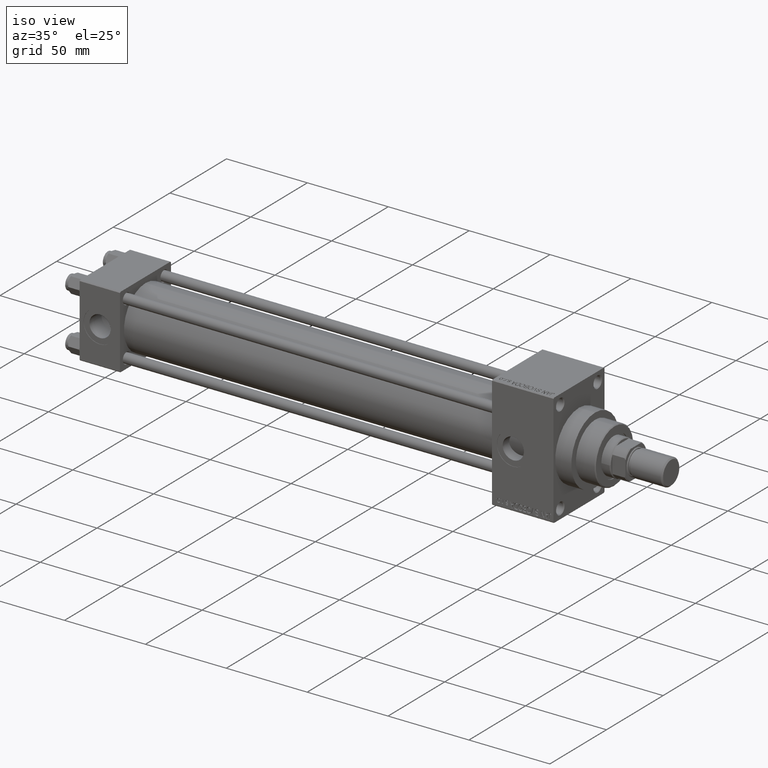
[diagram: clean part render]
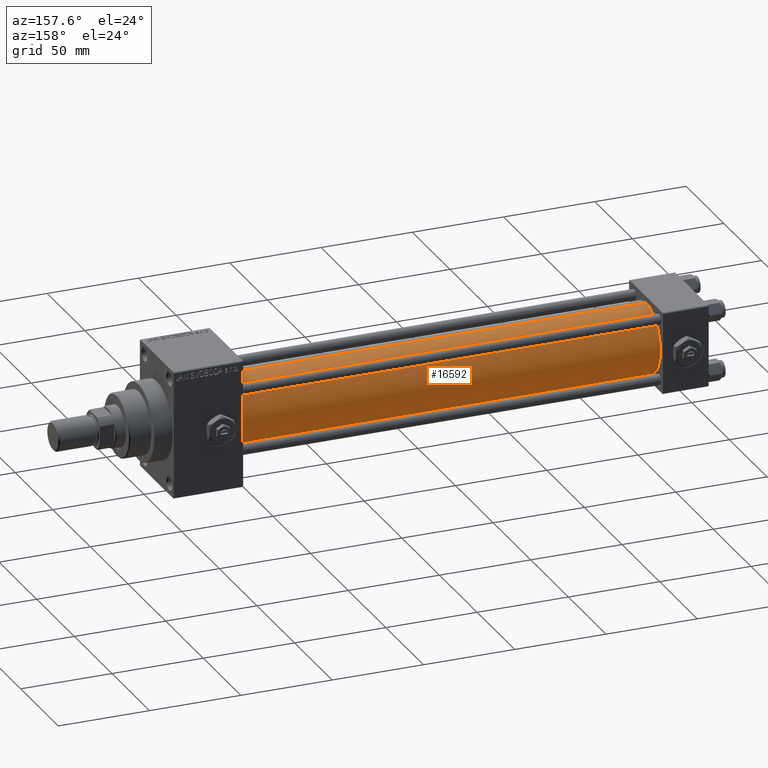
[diagram: tour spotlight — one face highlighted and labeled with its STEP entity id]
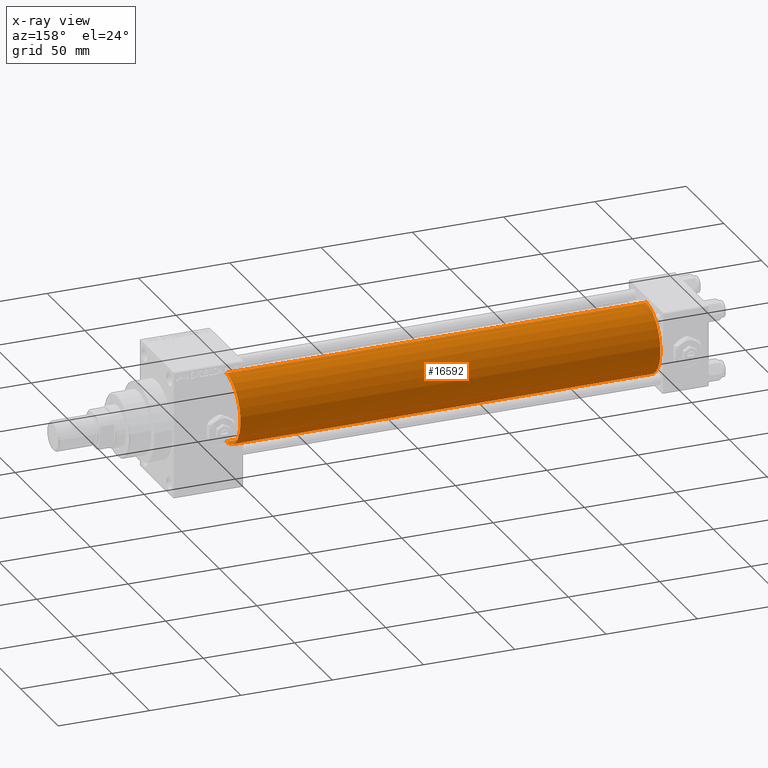
[diagram: x-ray of the same camera — body ghosted, this tour face saturated]
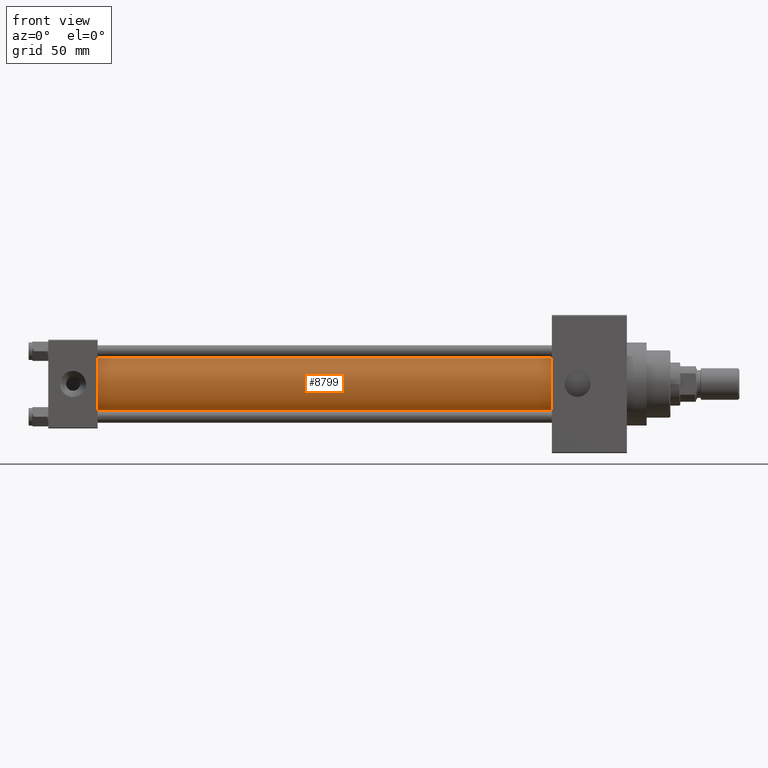
[diagram: tour spotlight — one face highlighted and labeled with its STEP entity id]
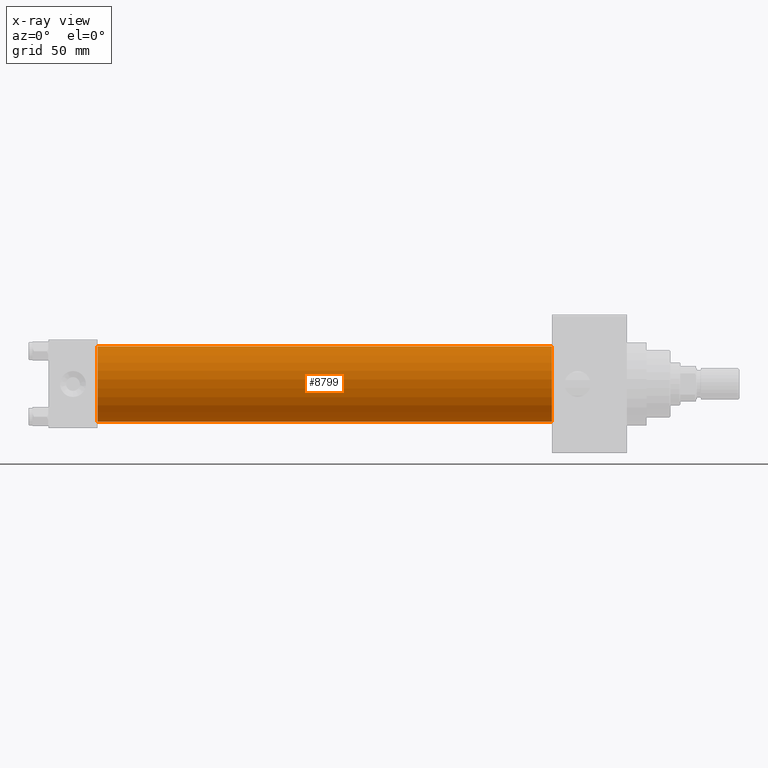
[diagram: x-ray of the same camera — body ghosted, this tour face saturated]
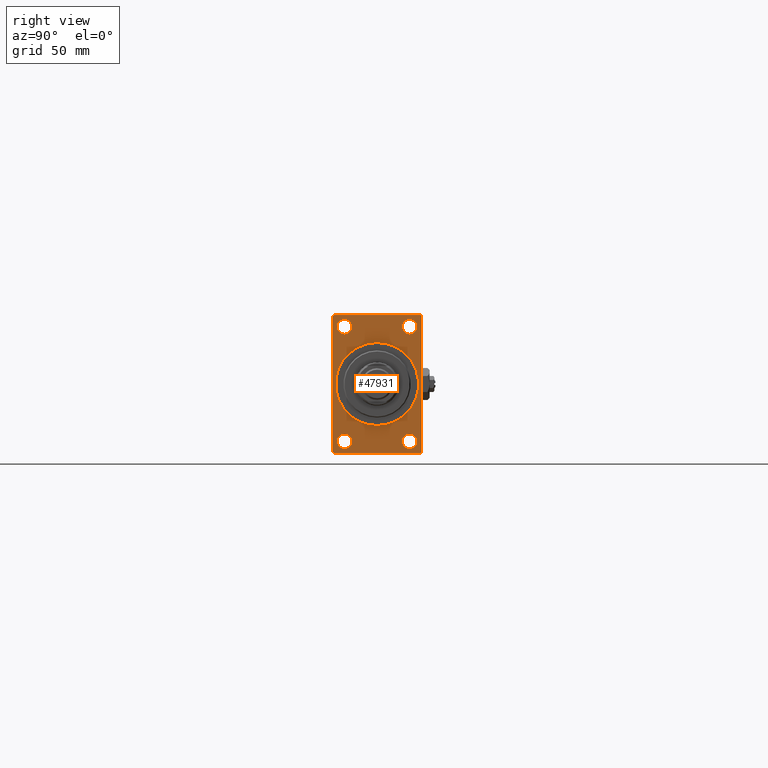
[diagram: tour spotlight — one face highlighted and labeled with its STEP entity id]
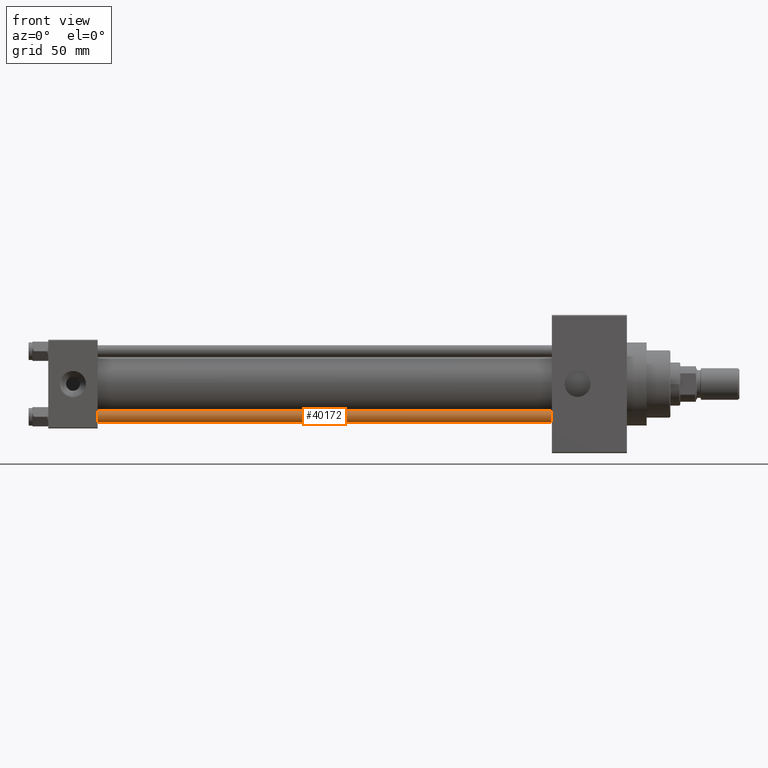
[diagram: tour spotlight — one face highlighted and labeled with its STEP entity id]
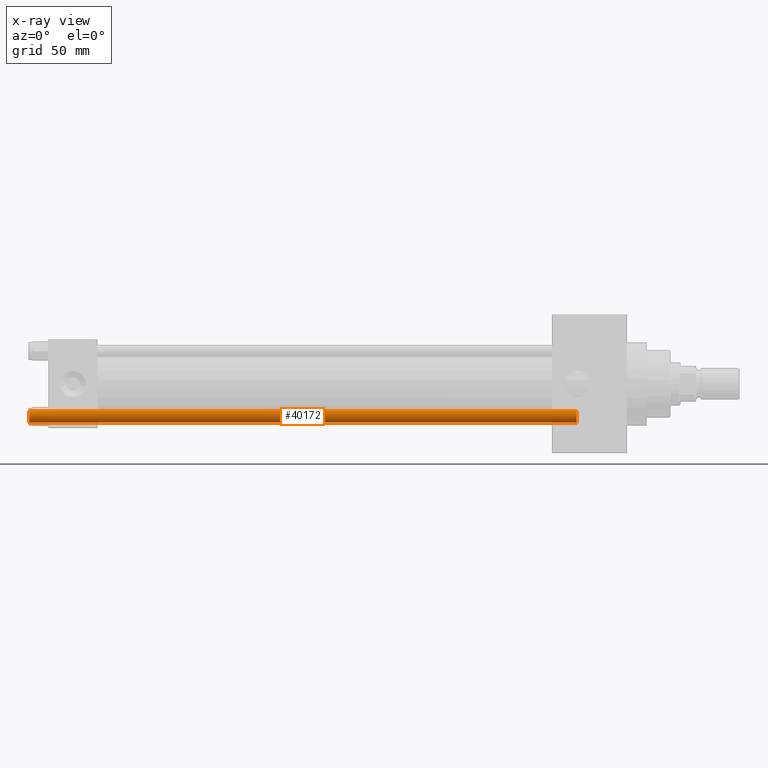
[diagram: x-ray of the same camera — body ghosted, this tour face saturated]
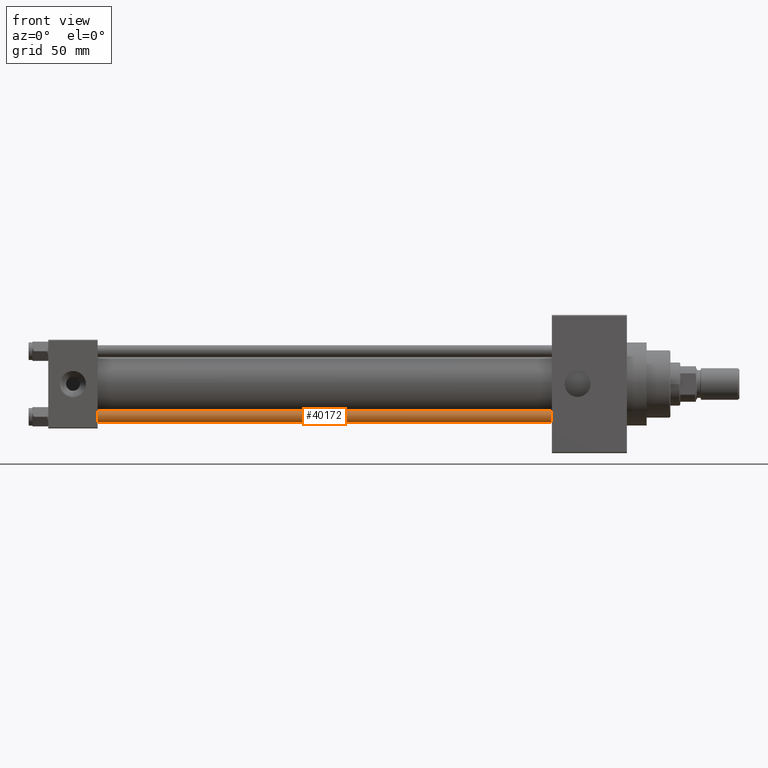
[diagram: tour spotlight — one face highlighted and labeled with its STEP entity id]
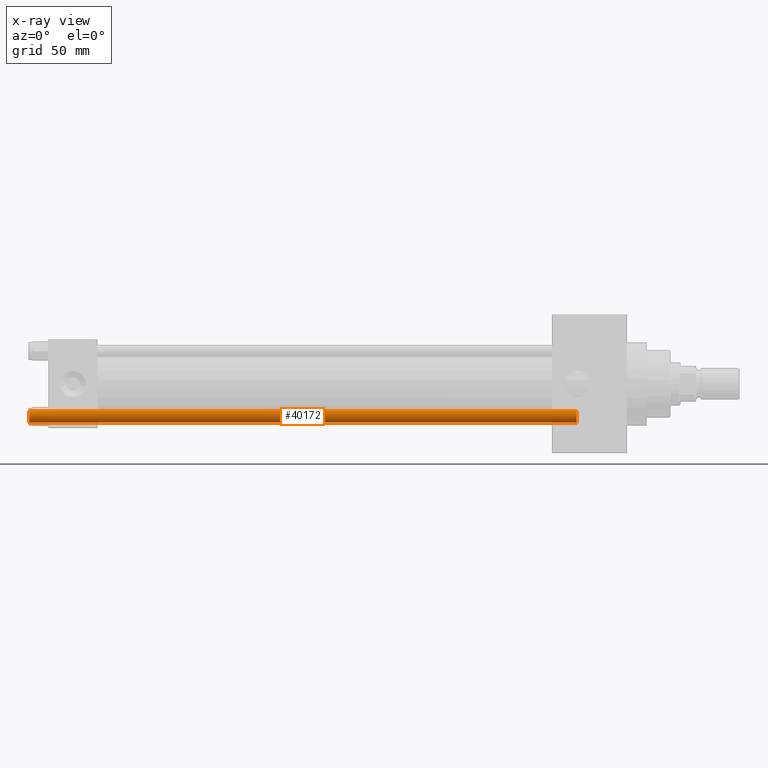
[diagram: x-ray of the same camera — body ghosted, this tour face saturated]
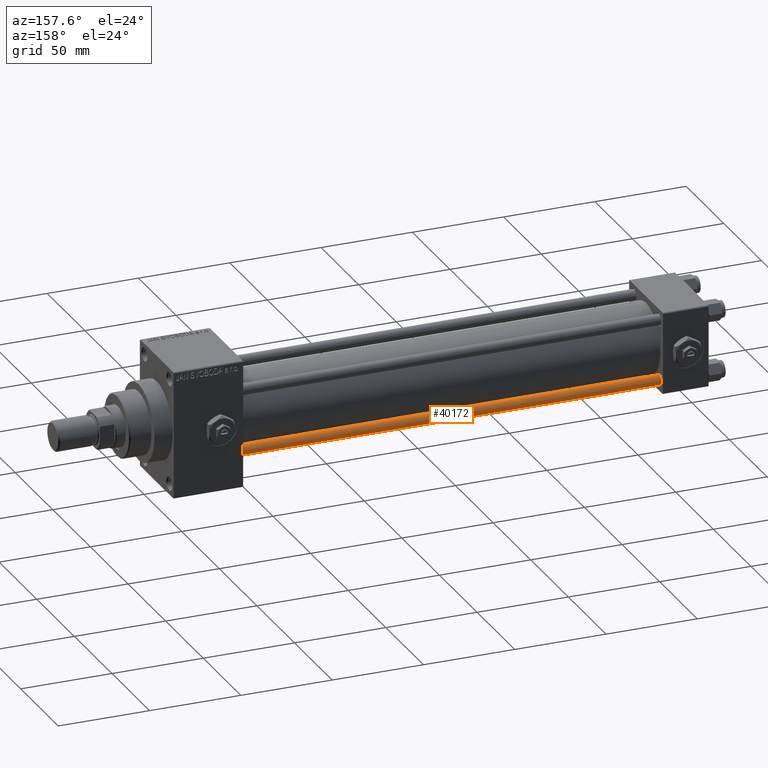
[diagram: tour spotlight — one face highlighted and labeled with its STEP entity id]
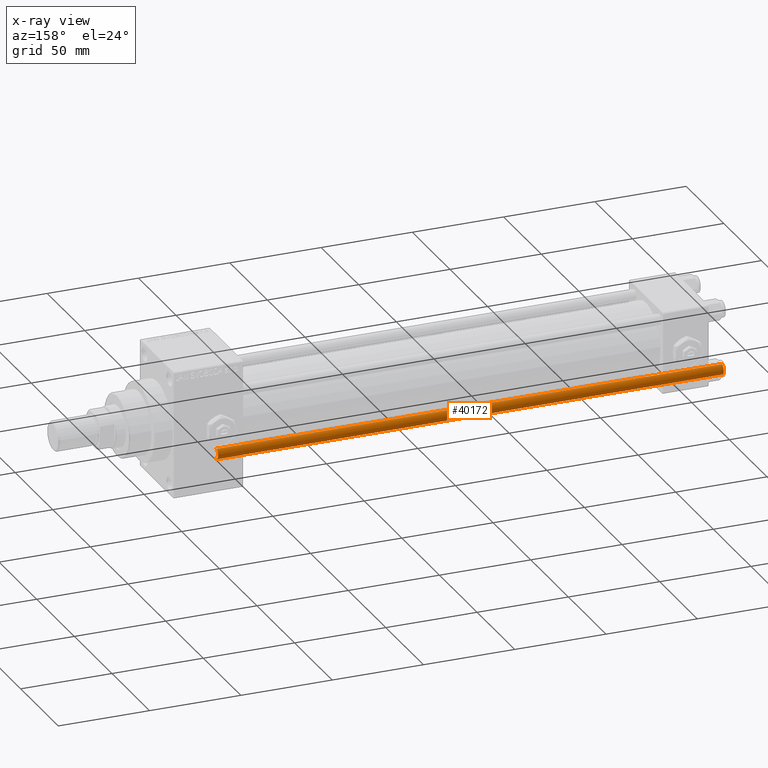
[diagram: x-ray of the same camera — body ghosted, this tour face saturated]
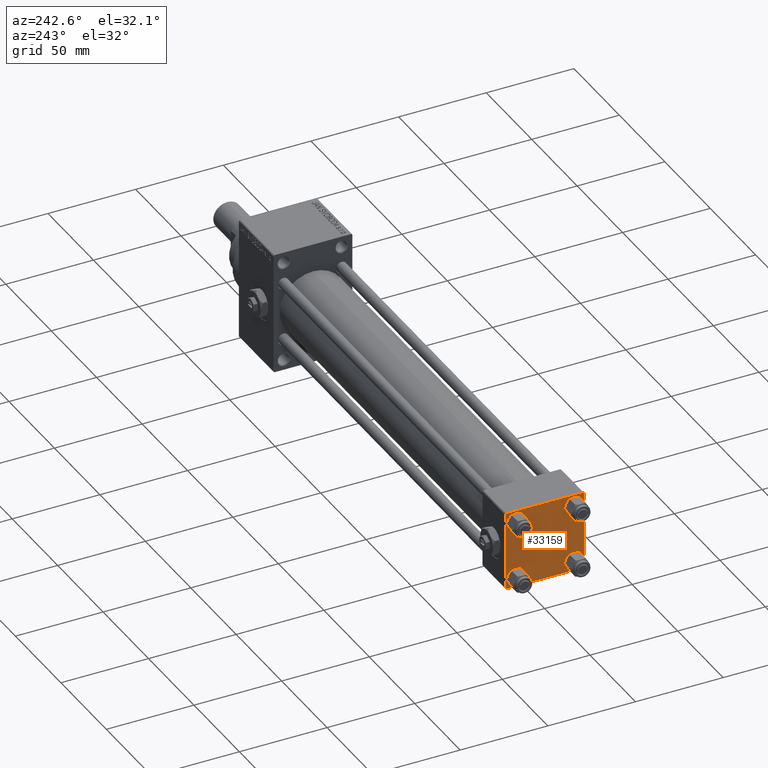
[diagram: tour spotlight — one face highlighted and labeled with its STEP entity id]
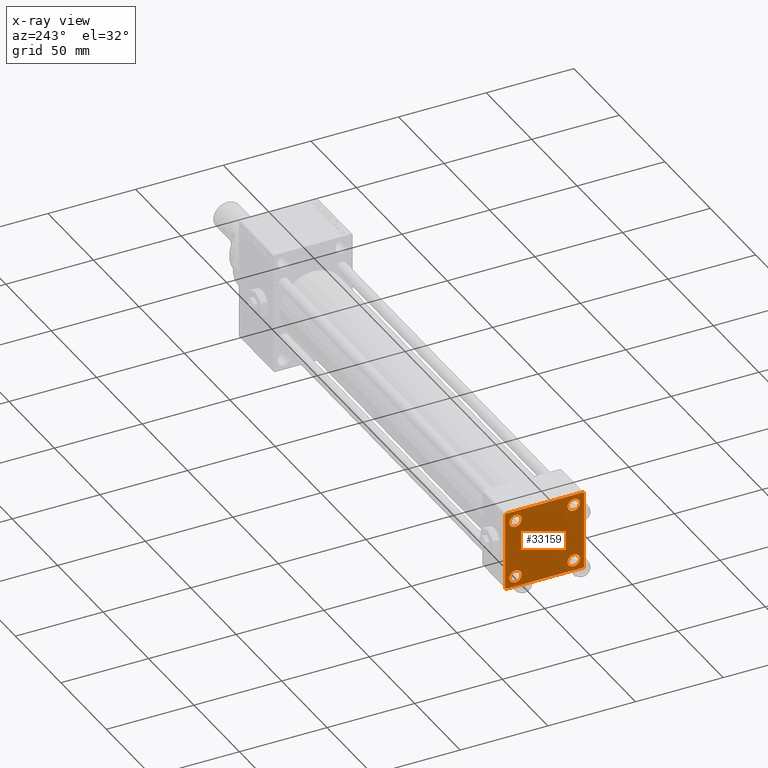
[diagram: x-ray of the same camera — body ghosted, this tour face saturated]
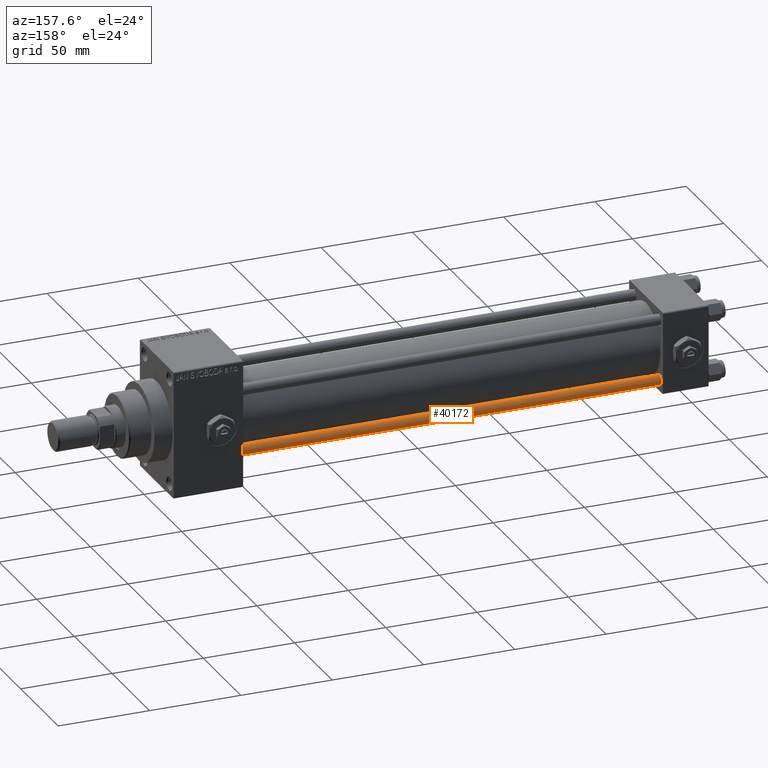
[diagram: tour spotlight — one face highlighted and labeled with its STEP entity id]
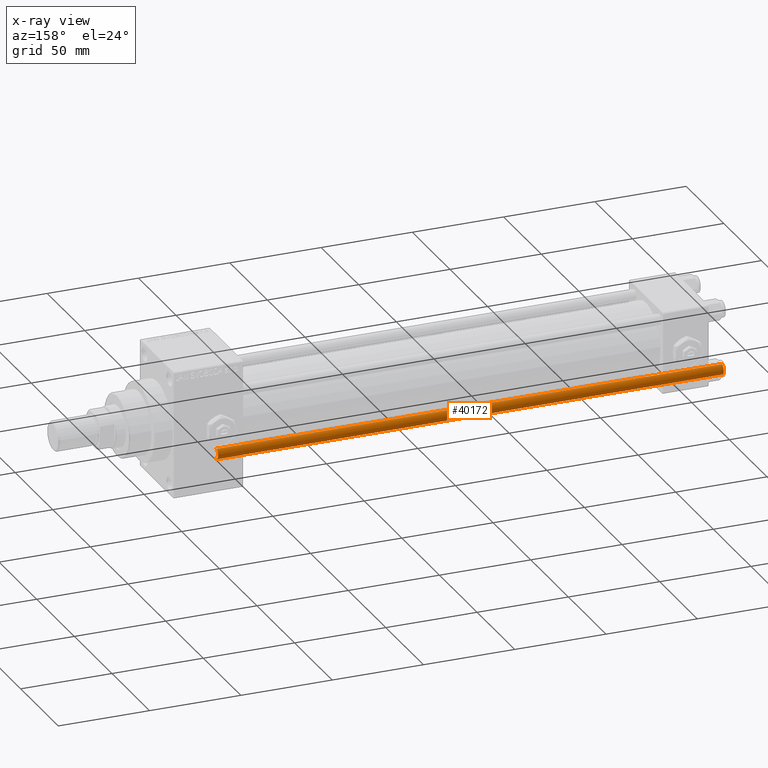
[diagram: x-ray of the same camera — body ghosted, this tour face saturated]
A machine part: a face-by-face anatomy tour. The part has 1216 B-rep faces; the first image is the clean iso view, then the 8 largest visible faces are spotlighted one at a time (largest first), each with its STEP entity span.

Face 1 — auxiliary view, entity #16592. An x-ray twin of the same camera follows (body ghosted, this face saturated) — the face is partly hidden behind the body. In plain terms, the highlighted cylindrical surface (partial cylindrical patch) has radius 19 mm, axis along (-1, -0, -0).
Definition (entity closure, byte-faithful):
#81 = DIRECTION ( 'NONE',  ( 1.000000000000000000, -0.000000000000000000, 0.000000000000000000 ) ) ;
#90 = CARTESIAN_POINT ( 'NONE',  ( 255.0000000000000000, -2.602085213965210642E-15, 19.00000000000000000 ) ) ;
#243 = CYLINDRICAL_SURFACE ( 'NONE', #13192, 19.00000000000000000 ) ;
#1212 = LINE ( 'NONE', #27505, #6956 ) ;
#2462 = CARTESIAN_POINT ( 'NONE',  ( 255.0000000000000000, -2.602085213965210642E-15, 0.000000000000000000 ) ) ;
#6956 = VECTOR ( 'NONE', #20258, 1000.000000000000000 ) ;
#8927 = VERTEX_POINT ( 'NONE', #44799 ) ;
#10486 = DIRECTION ( 'NONE',  ( 0.000000000000000000, 0.000000000000000000, -1.000000000000000000 ) ) ;
#11511 = FACE_OUTER_BOUND ( 'NONE', #39382, .T. ) ;
#12346 = EDGE_CURVE ( 'NONE', #40312, #33303, #45321, .T. ) ;
#13192 = AXIS2_PLACEMENT_3D ( 'NONE', #22327, #26071, #33582 ) ;
#14091 = VERTEX_POINT ( 'NONE', #90 ) ;
#15628 = EDGE_CURVE ( 'NONE', #40312, #14091, #17148, .T. ) ;
#16275 = AXIS2_PLACEMENT_3D ( 'NONE', #45205, #81, #45928 ) ;
#16592 = ADVANCED_FACE ( 'NONE', ( #11511 ), #243, .T. ) ;
#17148 = CIRCLE ( 'NONE', #26724, 19.00000000000000000 ) ;
#17774 = DIRECTION ( 'NONE',  ( 1.000000000000000000, 0.000000000000000000, 0.000000000000000000 ) ) ;
#18765 = DIRECTION ( 'NONE',  ( -1.000000000000000000, -0.000000000000000000, -0.000000000000000000 ) ) ;
#20258 = DIRECTION ( 'NONE',  ( -1.000000000000000000, -0.000000000000000000, -0.000000000000000000 ) ) ;
#21470 = EDGE_CURVE ( 'NONE', #14091, #8927, #1212, .T. ) ;
#22327 = CARTESIAN_POINT ( 'NONE',  ( 255.0000000000000000, -2.602085213965210642E-15, 0.000000000000000000 ) ) ;
#23149 = ORIENTED_EDGE ( 'NONE', *, *, #44138, .T. ) ;
#24156 = ORIENTED_EDGE ( 'NONE', *, *, #12346, .T. ) ;
#26071 = DIRECTION ( 'NONE',  ( -1.000000000000000000, -0.000000000000000000, -0.000000000000000000 ) ) ;
#26724 = AXIS2_PLACEMENT_3D ( 'NONE', #2462, #17774, #10486 ) ;
#27505 = CARTESIAN_POINT ( 'NONE',  ( 255.0000000000000000, -2.602085213965210642E-15, 19.00000000000000000 ) ) ;
#31568 = ORIENTED_EDGE ( 'NONE', *, *, #15628, .F. ) ;
#33238 = ORIENTED_EDGE ( 'NONE', *, *, #21470, .F. ) ;
#33303 = VERTEX_POINT ( 'NONE', #46899 ) ;
#33582 = DIRECTION ( 'NONE',  ( 0.000000000000000000, 0.000000000000000000, 1.000000000000000000 ) ) ;
#39382 = EDGE_LOOP ( 'NONE', ( #31568, #24156, #23149, #33238 ) ) ;
#40312 = VERTEX_POINT ( 'NONE', #41793 ) ;
#41072 = CARTESIAN_POINT ( 'NONE',  ( 255.0000000000000000, -2.752562955852396712E-16, -19.00000000000000000 ) ) ;
#41793 = CARTESIAN_POINT ( 'NONE',  ( 255.0000000000000000, -2.752562955852396712E-16, -19.00000000000000000 ) ) ;
#41875 = CIRCLE ( 'NONE', #16275, 19.00000000000000000 ) ;
#44138 = EDGE_CURVE ( 'NONE', #33303, #8927, #41875, .T. ) ;
#44799 = CARTESIAN_POINT ( 'NONE',  ( 24.99999999999999289, -2.602085213965210642E-15, 19.00000000000000000 ) ) ;
#45205 = CARTESIAN_POINT ( 'NONE',  ( 24.99999999999999289, -2.602085213965210642E-15, 0.000000000000000000 ) ) ;
#45321 = LINE ( 'NONE', #41072, #49177 ) ;
#45928 = DIRECTION ( 'NONE',  ( 0.000000000000000000, 0.000000000000000000, 1.000000000000000000 ) ) ;
#46899 = CARTESIAN_POINT ( 'NONE',  ( 24.99999999999999289, -2.752562955852396712E-16, -19.00000000000000000 ) ) ;
#49177 = VECTOR ( 'NONE', #18765, 1000.000000000000000 ) ;

Face 2 — front view, entity #8799. An x-ray twin of the same camera follows (body ghosted, this face saturated) — the face is partly hidden behind the body. In plain terms, the highlighted cylindrical surface (partial cylindrical patch) has radius 19 mm, axis along (-1, -0, -0).
Definition (entity closure, byte-faithful):
#90 = CARTESIAN_POINT ( 'NONE',  ( 255.0000000000000000, -2.602085213965210642E-15, 19.00000000000000000 ) ) ;
#1212 = LINE ( 'NONE', #27505, #6956 ) ;
#3483 = ORIENTED_EDGE ( 'NONE', *, *, #12346, .F. ) ;
#4723 = DIRECTION ( 'NONE',  ( 0.000000000000000000, 0.000000000000000000, 1.000000000000000000 ) ) ;
#5151 = ORIENTED_EDGE ( 'NONE', *, *, #7077, .F. ) ;
#5472 = FACE_OUTER_BOUND ( 'NONE', #6080, .T. ) ;
#5625 = CIRCLE ( 'NONE', #23220, 19.00000000000000000 ) ;
#6080 = EDGE_LOOP ( 'NONE', ( #3483, #5151, #10765, #28119 ) ) ;
#6956 = VECTOR ( 'NONE', #20258, 1000.000000000000000 ) ;
#7077 = EDGE_CURVE ( 'NONE', #14091, #40312, #13950, .T. ) ;
#8799 = ADVANCED_FACE ( 'NONE', ( #5472 ), #20267, .T. ) ;
#8927 = VERTEX_POINT ( 'NONE', #44799 ) ;
#10765 = ORIENTED_EDGE ( 'NONE', *, *, #21470, .T. ) ;
#12346 = EDGE_CURVE ( 'NONE', #40312, #33303, #45321, .T. ) ;
#13140 = DIRECTION ( 'NONE',  ( 0.000000000000000000, 0.000000000000000000, 1.000000000000000000 ) ) ;
#13950 = CIRCLE ( 'NONE', #38743, 19.00000000000000000 ) ;
#14091 = VERTEX_POINT ( 'NONE', #90 ) ;
#18765 = DIRECTION ( 'NONE',  ( -1.000000000000000000, -0.000000000000000000, -0.000000000000000000 ) ) ;
#20258 = DIRECTION ( 'NONE',  ( -1.000000000000000000, -0.000000000000000000, -0.000000000000000000 ) ) ;
#20267 = CYLINDRICAL_SURFACE ( 'NONE', #44429, 19.00000000000000000 ) ;
#20755 = DIRECTION ( 'NONE',  ( 1.000000000000000000, 0.000000000000000000, 0.000000000000000000 ) ) ;
#21470 = EDGE_CURVE ( 'NONE', #14091, #8927, #1212, .T. ) ;
#23220 = AXIS2_PLACEMENT_3D ( 'NONE', #35933, #47206, #13140 ) ;
#24760 = CARTESIAN_POINT ( 'NONE',  ( 255.0000000000000000, -2.602085213965210642E-15, 0.000000000000000000 ) ) ;
#27505 = CARTESIAN_POINT ( 'NONE',  ( 255.0000000000000000, -2.602085213965210642E-15, 19.00000000000000000 ) ) ;
#28001 = DIRECTION ( 'NONE',  ( 0.000000000000000000, 0.000000000000000000, -1.000000000000000000 ) ) ;
#28119 = ORIENTED_EDGE ( 'NONE', *, *, #32907, .T. ) ;
#31765 = CARTESIAN_POINT ( 'NONE',  ( 255.0000000000000000, -2.602085213965210642E-15, 0.000000000000000000 ) ) ;
#32527 = DIRECTION ( 'NONE',  ( -1.000000000000000000, -0.000000000000000000, -0.000000000000000000 ) ) ;
#32907 = EDGE_CURVE ( 'NONE', #8927, #33303, #5625, .T. ) ;
#33303 = VERTEX_POINT ( 'NONE', #46899 ) ;
#35933 = CARTESIAN_POINT ( 'NONE',  ( 24.99999999999999289, -2.602085213965210642E-15, 0.000000000000000000 ) ) ;
#38743 = AXIS2_PLACEMENT_3D ( 'NONE', #31765, #20755, #28001 ) ;
#40312 = VERTEX_POINT ( 'NONE', #41793 ) ;
#41072 = CARTESIAN_POINT ( 'NONE',  ( 255.0000000000000000, -2.752562955852396712E-16, -19.00000000000000000 ) ) ;
#41793 = CARTESIAN_POINT ( 'NONE',  ( 255.0000000000000000, -2.752562955852396712E-16, -19.00000000000000000 ) ) ;
#44429 = AXIS2_PLACEMENT_3D ( 'NONE', #24760, #32527, #4723 ) ;
#44799 = CARTESIAN_POINT ( 'NONE',  ( 24.99999999999999289, -2.602085213965210642E-15, 19.00000000000000000 ) ) ;
#45321 = LINE ( 'NONE', #41072, #49177 ) ;
#46899 = CARTESIAN_POINT ( 'NONE',  ( 24.99999999999999289, -2.752562955852396712E-16, -19.00000000000000000 ) ) ;
#47206 = DIRECTION ( 'NONE',  ( 1.000000000000000000, -0.000000000000000000, 0.000000000000000000 ) ) ;
#49177 = VECTOR ( 'NONE', #18765, 1000.000000000000000 ) ;

Face 3 — right view, entity #47931. In plain terms, the highlighted planar face has unit normal (-1, 0, 0).
Definition (entity closure, byte-faithful):
#96 = VECTOR ( 'NONE', #36192, 1000.000000000000000 ) ;
#139 = DIRECTION ( 'NONE',  ( 0.000000000000000000, -1.000000000000000000, 0.000000000000000000 ) ) ;
#409 = CIRCLE ( 'NONE', #30811, 3.750000000000055511 ) ;
#772 = VERTEX_POINT ( 'NONE', #27782 ) ;
#799 = DIRECTION ( 'NONE',  ( 0.000000000000000000, -1.000000000000000000, 0.000000000000000000 ) ) ;
#1012 = CARTESIAN_POINT ( 'NONE',  ( 293.0000000000000000, -16.50000000000000000, 25.24999999999995381 ) ) ;
#1125 = AXIS2_PLACEMENT_3D ( 'NONE', #28204, #39980, #13429 ) ;
#1305 = EDGE_CURVE ( 'NONE', #30660, #34110, #2486, .T. ) ;
#2002 = DIRECTION ( 'NONE',  ( -0.000000000000000000, 0.7071067811865672237, 0.7071067811865279218 ) ) ;
#2426 = CARTESIAN_POINT ( 'NONE',  ( 293.0000000000000000, 22.49999999999999645, 34.50000000000000000 ) ) ;
#2486 = LINE ( 'NONE', #40583, #30552 ) ;
#2597 = AXIS2_PLACEMENT_3D ( 'NONE', #18182, #13659, #36942 ) ;
#2845 = EDGE_CURVE ( 'NONE', #20698, #772, #47380, .T. ) ;
#3093 = AXIS2_PLACEMENT_3D ( 'NONE', #44635, #7014, #41108 ) ;
#3503 = EDGE_CURVE ( 'NONE', #44956, #45245, #41998, .T. ) ;
#4342 = CARTESIAN_POINT ( 'NONE',  ( 293.0000000000000000, -22.50000000000000355, -34.50000000000000000 ) ) ;
#4517 = EDGE_CURVE ( 'NONE', #29907, #4575, #37073, .T. ) ;
#4575 = VERTEX_POINT ( 'NONE', #41630 ) ;
#4599 = ORIENTED_EDGE ( 'NONE', *, *, #43887, .T. ) ;
#4656 = EDGE_LOOP ( 'NONE', ( #11989, #22182, #35012, #38792, #9997, #43025, #4599, #25681 ) ) ;
#5144 = VERTEX_POINT ( 'NONE', #12683 ) ;
#6068 = EDGE_CURVE ( 'NONE', #25559, #5144, #12276, .T. ) ;
#7014 = DIRECTION ( 'NONE',  ( -1.000000000000000000, -0.000000000000000000, -0.000000000000000000 ) ) ;
#7545 = DIRECTION ( 'NONE',  ( -1.000000000000000000, -0.000000000000000000, -0.000000000000000000 ) ) ;
#7666 = CARTESIAN_POINT ( 'NONE',  ( 293.0000000000000000, -22.50000000000000355, 35.00000000000000000 ) ) ;
#7695 = CARTESIAN_POINT ( 'NONE',  ( 293.0000000000000000, 16.50000000000000000, -32.75000000000005684 ) ) ;
#8384 = DIRECTION ( 'NONE',  ( 0.000000000000000000, -0.7071067811865279218, 0.7071067811865671127 ) ) ;
#8649 = EDGE_CURVE ( 'NONE', #4575, #29907, #409, .T. ) ;
#8813 = CARTESIAN_POINT ( 'NONE',  ( 293.0000000000000000, -21.99999999999996092, 35.00000000000000000 ) ) ;
#9257 = EDGE_LOOP ( 'NONE', ( #38964, #23137 ) ) ;
#9325 = VERTEX_POINT ( 'NONE', #8813 ) ;
#9664 = DIRECTION ( 'NONE',  ( 0.000000000000000000, 0.000000000000000000, 1.000000000000000000 ) ) ;
#9796 = EDGE_LOOP ( 'NONE', ( #29252, #18503 ) ) ;
#9858 = EDGE_CURVE ( 'NONE', #28689, #36130, #31633, .T. ) ;
#9997 = ORIENTED_EDGE ( 'NONE', *, *, #40499, .F. ) ;
#10270 = CARTESIAN_POINT ( 'NONE',  ( 293.0000000000000000, 0.000000000000000000, 21.00000000000000000 ) ) ;
#10445 = LINE ( 'NONE', #25717, #20847 ) ;
#11505 = FACE_BOUND ( 'NONE', #30114, .T. ) ;
#11724 = CARTESIAN_POINT ( 'NONE',  ( 293.0000000000000000, 22.00000000000002132, 35.00000000000000000 ) ) ;
#11876 = CIRCLE ( 'NONE', #3093, 3.750000000000055511 ) ;
#11989 = ORIENTED_EDGE ( 'NONE', *, *, #3503, .T. ) ;
#12276 = CIRCLE ( 'NONE', #40294, 3.750000000000058620 ) ;
#12459 = ORIENTED_EDGE ( 'NONE', *, *, #39296, .T. ) ;
#12683 = CARTESIAN_POINT ( 'NONE',  ( 293.0000000000000000, 16.50000000000000000, 25.24999999999994671 ) ) ;
#13429 = DIRECTION ( 'NONE',  ( 0.000000000000000000, 0.000000000000000000, -1.000000000000000000 ) ) ;
#13659 = DIRECTION ( 'NONE',  ( -1.000000000000000000, -0.000000000000000000, -0.000000000000000000 ) ) ;
#14521 = CARTESIAN_POINT ( 'NONE',  ( 293.0000000000000000, 2.571758278209441661E-15, -21.00000000000000000 ) ) ;
#14792 = PLANE ( 'NONE',  #45836 ) ;
#14994 = EDGE_CURVE ( 'NONE', #43521, #44342, #18733, .T. ) ;
#15036 = CARTESIAN_POINT ( 'NONE',  ( 293.0000000000000000, 0.000000000000000000, 0.000000000000000000 ) ) ;
#15268 = CIRCLE ( 'NONE', #40096, 3.750000000000055511 ) ;
#15413 = ORIENTED_EDGE ( 'NONE', *, *, #14994, .F. ) ;
#16579 = CARTESIAN_POINT ( 'NONE',  ( 293.0000000000000000, 21.99999999999996803, -35.00000000000000000 ) ) ;
#16648 = EDGE_CURVE ( 'NONE', #44342, #43521, #35568, .T. ) ;
#17187 = ORIENTED_EDGE ( 'NONE', *, *, #4517, .T. ) ;
#17373 = CARTESIAN_POINT ( 'NONE',  ( 293.0000000000000000, -16.50000000000000000, -25.24999999999993605 ) ) ;
#18182 = CARTESIAN_POINT ( 'NONE',  ( 293.0000000000000000, -16.50000000000000000, -28.99999999999999289 ) ) ;
#18317 = DIRECTION ( 'NONE',  ( 0.000000000000000000, 0.000000000000000000, 1.000000000000000000 ) ) ;
#18503 = ORIENTED_EDGE ( 'NONE', *, *, #6068, .T. ) ;
#18733 = CIRCLE ( 'NONE', #1125, 21.00000000000000000 ) ;
#19053 = DIRECTION ( 'NONE',  ( 0.000000000000000000, 0.000000000000000000, -1.000000000000000000 ) ) ;
#19143 = DIRECTION ( 'NONE',  ( 0.000000000000000000, 0.000000000000000000, 1.000000000000000000 ) ) ;
#20143 = CARTESIAN_POINT ( 'NONE',  ( 293.0000000000000000, 16.50000000000000000, 32.75000000000006395 ) ) ;
#20282 = DIRECTION ( 'NONE',  ( -1.000000000000000000, 0.000000000000000000, -0.000000000000000000 ) ) ;
#20698 = VERTEX_POINT ( 'NONE', #17373 ) ;
#20847 = VECTOR ( 'NONE', #21989, 1000.000000000000000 ) ;
#21143 = DIRECTION ( 'NONE',  ( -1.000000000000000000, -0.000000000000000000, -0.000000000000000000 ) ) ;
#21586 = CARTESIAN_POINT ( 'NONE',  ( 293.0000000000000000, 16.50000000000000000, 29.00000000000000355 ) ) ;
#21637 = CARTESIAN_POINT ( 'NONE',  ( 293.0000000000000000, -16.50000000000000000, 29.00000000000000711 ) ) ;
#21989 = DIRECTION ( 'NONE',  ( -0.000000000000000000, -0.7071067811865672237, -0.7071067811865279218 ) ) ;
#22083 = AXIS2_PLACEMENT_3D ( 'NONE', #30169, #45446, #19143 ) ;
#22182 = ORIENTED_EDGE ( 'NONE', *, *, #27786, .T. ) ;
#22381 = CIRCLE ( 'NONE', #24765, 3.750000000000058620 ) ;
#22970 = DIRECTION ( 'NONE',  ( 0.000000000000000000, 0.000000000000000000, -1.000000000000000000 ) ) ;
#23137 = ORIENTED_EDGE ( 'NONE', *, *, #26124, .T. ) ;
#23858 = EDGE_LOOP ( 'NONE', ( #15413, #37521 ) ) ;
#23939 = CARTESIAN_POINT ( 'NONE',  ( 293.0000000000000000, -22.50000000000000355, 34.50000000000000000 ) ) ;
#24202 = DIRECTION ( 'NONE',  ( -1.000000000000000000, -0.000000000000000000, -0.000000000000000000 ) ) ;
#24765 = AXIS2_PLACEMENT_3D ( 'NONE', #21586, #40855, #18317 ) ;
#25014 = LINE ( 'NONE', #29293, #49438 ) ;
#25016 = VECTOR ( 'NONE', #22970, 1000.000000000000000 ) ;
#25559 = VERTEX_POINT ( 'NONE', #20143 ) ;
#25668 = LINE ( 'NONE', #44484, #96 ) ;
#25681 = ORIENTED_EDGE ( 'NONE', *, *, #33641, .T. ) ;
#25717 = CARTESIAN_POINT ( 'NONE',  ( 293.0000000000000000, -22.50000000000000355, 34.50000000000000000 ) ) ;
#25842 = DIRECTION ( 'NONE',  ( 0.000000000000000000, 0.000000000000000000, 1.000000000000000000 ) ) ;
#26065 = FACE_BOUND ( 'NONE', #33125, .T. ) ;
#26124 = EDGE_CURVE ( 'NONE', #36130, #28689, #11876, .T. ) ;
#26587 = CARTESIAN_POINT ( 'NONE',  ( 293.0000000000000000, -16.50000000000000000, 29.00000000000000711 ) ) ;
#26615 = CARTESIAN_POINT ( 'NONE',  ( 293.0000000000000000, -22.00000000000001776, -35.00000000000000000 ) ) ;
#26791 = FACE_OUTER_BOUND ( 'NONE', #4656, .T. ) ;
#27782 = CARTESIAN_POINT ( 'NONE',  ( 293.0000000000000000, -16.50000000000000000, -32.75000000000005684 ) ) ;
#27786 = EDGE_CURVE ( 'NONE', #45245, #38955, #25014, .T. ) ;
#27855 = CARTESIAN_POINT ( 'NONE',  ( 293.0000000000000000, 22.49999999999999645, -35.00000000000000000 ) ) ;
#28204 = CARTESIAN_POINT ( 'NONE',  ( 293.0000000000000000, 0.000000000000000000, 0.000000000000000000 ) ) ;
#28689 = VERTEX_POINT ( 'NONE', #7695 ) ;
#29069 = AXIS2_PLACEMENT_3D ( 'NONE', #26587, #7545, #45624 ) ;
#29252 = ORIENTED_EDGE ( 'NONE', *, *, #30748, .T. ) ;
#29293 = CARTESIAN_POINT ( 'NONE',  ( 293.0000000000000000, -22.00000000000002842, -35.00000000000000000 ) ) ;
#29907 = VERTEX_POINT ( 'NONE', #1012 ) ;
#29972 = CARTESIAN_POINT ( 'NONE',  ( 293.0000000000000000, 22.49999999999999645, 35.00000000000000000 ) ) ;
#30114 = EDGE_LOOP ( 'NONE', ( #12459, #36271 ) ) ;
#30169 = CARTESIAN_POINT ( 'NONE',  ( 293.0000000000000000, 16.50000000000000000, -28.99999999999999289 ) ) ;
#30552 = VECTOR ( 'NONE', #2002, 1000.000000000000000 ) ;
#30606 = VECTOR ( 'NONE', #139, 1000.000000000000000 ) ;
#30660 = VERTEX_POINT ( 'NONE', #16579 ) ;
#30748 = EDGE_CURVE ( 'NONE', #5144, #25559, #22381, .T. ) ;
#30811 = AXIS2_PLACEMENT_3D ( 'NONE', #21637, #21143, #33805 ) ;
#30956 = LINE ( 'NONE', #29972, #30606 ) ;
#31077 = CARTESIAN_POINT ( 'NONE',  ( 293.0000000000000000, 16.50000000000000000, -25.24999999999993605 ) ) ;
#31293 = DIRECTION ( 'NONE',  ( -0.000000000000000000, 0.000000000000000000, 1.000000000000000000 ) ) ;
#31633 = CIRCLE ( 'NONE', #22083, 3.750000000000055511 ) ;
#31734 = CARTESIAN_POINT ( 'NONE',  ( 293.0000000000000000, 16.50000000000000000, 29.00000000000000355 ) ) ;
#31757 = ORIENTED_EDGE ( 'NONE', *, *, #8649, .T. ) ;
#32017 = VECTOR ( 'NONE', #8384, 1000.000000000000000 ) ;
#33125 = EDGE_LOOP ( 'NONE', ( #17187, #31757 ) ) ;
#33272 = EDGE_CURVE ( 'NONE', #30660, #38955, #42899, .T. ) ;
#33599 = CARTESIAN_POINT ( 'NONE',  ( 293.0000000000000000, -16.50000000000000000, -28.99999999999999289 ) ) ;
#33641 = EDGE_CURVE ( 'NONE', #9325, #44956, #10445, .T. ) ;
#33700 = EDGE_CURVE ( 'NONE', #43837, #40380, #49259, .T. ) ;
#33805 = DIRECTION ( 'NONE',  ( 0.000000000000000000, 0.000000000000000000, 1.000000000000000000 ) ) ;
#34110 = VERTEX_POINT ( 'NONE', #37368 ) ;
#35012 = ORIENTED_EDGE ( 'NONE', *, *, #33272, .F. ) ;
#35568 = CIRCLE ( 'NONE', #41965, 21.00000000000000000 ) ;
#36130 = VERTEX_POINT ( 'NONE', #31077 ) ;
#36192 = DIRECTION ( 'NONE',  ( 0.000000000000000000, 0.000000000000000000, -1.000000000000000000 ) ) ;
#36271 = ORIENTED_EDGE ( 'NONE', *, *, #2845, .T. ) ;
#36942 = DIRECTION ( 'NONE',  ( 0.000000000000000000, 0.000000000000000000, 1.000000000000000000 ) ) ;
#37073 = CIRCLE ( 'NONE', #29069, 3.750000000000055511 ) ;
#37368 = CARTESIAN_POINT ( 'NONE',  ( 293.0000000000000000, 22.49999999999999645, -34.50000000000000000 ) ) ;
#37521 = ORIENTED_EDGE ( 'NONE', *, *, #16648, .F. ) ;
#37576 = FACE_BOUND ( 'NONE', #23858, .T. ) ;
#37596 = DIRECTION ( 'NONE',  ( -1.000000000000000000, -0.000000000000000000, -0.000000000000000000 ) ) ;
#38082 = DIRECTION ( 'NONE',  ( 1.000000000000000000, 0.000000000000000000, 0.000000000000000000 ) ) ;
#38792 = ORIENTED_EDGE ( 'NONE', *, *, #1305, .T. ) ;
#38955 = VERTEX_POINT ( 'NONE', #26615 ) ;
#38964 = ORIENTED_EDGE ( 'NONE', *, *, #9858, .T. ) ;
#39296 = EDGE_CURVE ( 'NONE', #772, #20698, #15268, .T. ) ;
#39980 = DIRECTION ( 'NONE',  ( 1.000000000000000000, 0.000000000000000000, 0.000000000000000000 ) ) ;
#40050 = DIRECTION ( 'NONE',  ( 0.000000000000000000, 0.7071067811865279218, -0.7071067811865671127 ) ) ;
#40096 = AXIS2_PLACEMENT_3D ( 'NONE', #33599, #37596, #25842 ) ;
#40294 = AXIS2_PLACEMENT_3D ( 'NONE', #31734, #24202, #9664 ) ;
#40380 = VERTEX_POINT ( 'NONE', #11724 ) ;
#40499 = EDGE_CURVE ( 'NONE', #43837, #34110, #25668, .T. ) ;
#40583 = CARTESIAN_POINT ( 'NONE',  ( 293.0000000000000000, 22.49999999999999645, -34.50000000000000000 ) ) ;
#40855 = DIRECTION ( 'NONE',  ( -1.000000000000000000, -0.000000000000000000, -0.000000000000000000 ) ) ;
#41108 = DIRECTION ( 'NONE',  ( 0.000000000000000000, 0.000000000000000000, 1.000000000000000000 ) ) ;
#41348 = FACE_BOUND ( 'NONE', #9796, .T. ) ;
#41630 = CARTESIAN_POINT ( 'NONE',  ( 293.0000000000000000, -16.50000000000000000, 32.75000000000006395 ) ) ;
#41965 = AXIS2_PLACEMENT_3D ( 'NONE', #15036, #38082, #19053 ) ;
#41998 = LINE ( 'NONE', #7666, #25016 ) ;
#42463 = CARTESIAN_POINT ( 'NONE',  ( 293.0000000000000000, 22.00000000000002132, 35.00000000000000000 ) ) ;
#42899 = LINE ( 'NONE', #27855, #46427 ) ;
#43025 = ORIENTED_EDGE ( 'NONE', *, *, #33700, .T. ) ;
#43521 = VERTEX_POINT ( 'NONE', #10270 ) ;
#43837 = VERTEX_POINT ( 'NONE', #2426 ) ;
#43887 = EDGE_CURVE ( 'NONE', #40380, #9325, #30956, .T. ) ;
#44342 = VERTEX_POINT ( 'NONE', #14521 ) ;
#44484 = CARTESIAN_POINT ( 'NONE',  ( 293.0000000000000000, 22.49999999999999645, 35.00000000000000000 ) ) ;
#44635 = CARTESIAN_POINT ( 'NONE',  ( 293.0000000000000000, 16.50000000000000000, -28.99999999999999289 ) ) ;
#44956 = VERTEX_POINT ( 'NONE', #23939 ) ;
#45245 = VERTEX_POINT ( 'NONE', #4342 ) ;
#45446 = DIRECTION ( 'NONE',  ( -1.000000000000000000, -0.000000000000000000, -0.000000000000000000 ) ) ;
#45624 = DIRECTION ( 'NONE',  ( 0.000000000000000000, 0.000000000000000000, 1.000000000000000000 ) ) ;
#45836 = AXIS2_PLACEMENT_3D ( 'NONE', #46576, #20282, #31293 ) ;
#46427 = VECTOR ( 'NONE', #799, 1000.000000000000000 ) ;
#46576 = CARTESIAN_POINT ( 'NONE',  ( 293.0000000000000000, 0.000000000000000000, 0.000000000000000000 ) ) ;
#47380 = CIRCLE ( 'NONE', #2597, 3.750000000000055511 ) ;
#47931 = ADVANCED_FACE ( 'NONE', ( #26065, #11505, #49117, #41348, #37576, #26791 ), #14792, .F. ) ;
#49117 = FACE_BOUND ( 'NONE', #9257, .T. ) ;
#49259 = LINE ( 'NONE', #42463, #32017 ) ;
#49438 = VECTOR ( 'NONE', #40050, 1000.000000000000000 ) ;

Face 4 — front view, entity #40172. An x-ray twin of the same camera follows (body ghosted, this face saturated) — the face is partly hidden behind the body. In plain terms, the highlighted cylindrical surface (edge-blend (fillet) strip) has radius 3 mm, axis along (1, 0, 0).
Definition (entity closure, byte-faithful):
#1253 = EDGE_LOOP ( 'NONE', ( #27682, #41721, #4872, #29681 ) ) ;
#1750 = FACE_OUTER_BOUND ( 'NONE', #1253, .T. ) ;
#1961 = CARTESIAN_POINT ( 'NONE',  ( -3.000000000000000444, 0.000000000000000000, 277.5000000000000568 ) ) ;
#2008 = DIRECTION ( 'NONE',  ( -0.000000000000000000, -0.000000000000000000, -1.000000000000000000 ) ) ;
#2948 = DIRECTION ( 'NONE',  ( 0.000000000000000000, 0.000000000000000000, -1.000000000000000000 ) ) ;
#3594 = CARTESIAN_POINT ( 'NONE',  ( 3.000000000000000444, 3.673940397442060361E-16, 278.0000000000000000 ) ) ;
#3846 = EDGE_CURVE ( 'NONE', #21310, #8775, #35413, .T. ) ;
#4872 = ORIENTED_EDGE ( 'NONE', *, *, #3846, .T. ) ;
#5561 = DIRECTION ( 'NONE',  ( -0.000000000000000000, -0.000000000000000000, 1.000000000000000000 ) ) ;
#8775 = VERTEX_POINT ( 'NONE', #11988 ) ;
#10563 = VECTOR ( 'NONE', #41499, 1000.000000000000000 ) ;
#11988 = CARTESIAN_POINT ( 'NONE',  ( -3.000000000000000444, 0.000000000000000000, 0.5000000000000559552 ) ) ;
#15362 = LINE ( 'NONE', #3594, #21365 ) ;
#17749 = CARTESIAN_POINT ( 'NONE',  ( -3.000000000000000444, 0.000000000000000000, 278.0000000000000000 ) ) ;
#20311 = CARTESIAN_POINT ( 'NONE',  ( 0.000000000000000000, 0.000000000000000000, 278.0000000000000000 ) ) ;
#20616 = EDGE_CURVE ( 'NONE', #29363, #21310, #15362, .T. ) ;
#21194 = CARTESIAN_POINT ( 'NONE',  ( 3.000000000000000444, 3.673940397442060361E-16, 277.5000000000000568 ) ) ;
#21310 = VERTEX_POINT ( 'NONE', #34523 ) ;
#21365 = VECTOR ( 'NONE', #30637, 1000.000000000000000 ) ;
#21548 = VERTEX_POINT ( 'NONE', #1961 ) ;
#21952 = AXIS2_PLACEMENT_3D ( 'NONE', #26643, #2948, #33506 ) ;
#23854 = CARTESIAN_POINT ( 'NONE',  ( 0.000000000000000000, 0.000000000000000000, 0.5000000000000559552 ) ) ;
#25718 = AXIS2_PLACEMENT_3D ( 'NONE', #20311, #2008, #31823 ) ;
#25978 = LINE ( 'NONE', #17749, #10563 ) ;
#26643 = CARTESIAN_POINT ( 'NONE',  ( 0.000000000000000000, 0.000000000000000000, 277.5000000000000568 ) ) ;
#27682 = ORIENTED_EDGE ( 'NONE', *, *, #46266, .T. ) ;
#29363 = VERTEX_POINT ( 'NONE', #21194 ) ;
#29681 = ORIENTED_EDGE ( 'NONE', *, *, #41351, .F. ) ;
#30637 = DIRECTION ( 'NONE',  ( -0.000000000000000000, -0.000000000000000000, -1.000000000000000000 ) ) ;
#31823 = DIRECTION ( 'NONE',  ( -1.000000000000000000, 0.000000000000000000, 0.000000000000000000 ) ) ;
#33506 = DIRECTION ( 'NONE',  ( 1.000000000000000000, 0.000000000000000000, 0.000000000000000000 ) ) ;
#34523 = CARTESIAN_POINT ( 'NONE',  ( 3.000000000000000444, 3.673940397442060361E-16, 0.5000000000000559552 ) ) ;
#35413 = CIRCLE ( 'NONE', #46612, 3.000000000000000444 ) ;
#40172 = ADVANCED_FACE ( 'NONE', ( #1750 ), #40329, .T. ) ;
#40329 = CYLINDRICAL_SURFACE ( 'NONE', #25718, 3.000000000000000444 ) ;
#41351 = EDGE_CURVE ( 'NONE', #21548, #8775, #25978, .T. ) ;
#41499 = DIRECTION ( 'NONE',  ( -0.000000000000000000, -0.000000000000000000, -1.000000000000000000 ) ) ;
#41721 = ORIENTED_EDGE ( 'NONE', *, *, #20616, .T. ) ;
#45143 = CIRCLE ( 'NONE', #21952, 3.000000000000000444 ) ;
#46266 = EDGE_CURVE ( 'NONE', #21548, #29363, #45143, .T. ) ;
#46612 = AXIS2_PLACEMENT_3D ( 'NONE', #23854, #5561, #46654 ) ;
#46654 = DIRECTION ( 'NONE',  ( 1.000000000000000000, 0.000000000000000000, 0.000000000000000000 ) ) ;

Face 5 — front view, entity #40172. An x-ray twin of the same camera follows (body ghosted, this face saturated) — the face is partly hidden behind the body. In plain terms, the highlighted cylindrical surface (edge-blend (fillet) strip) has radius 3 mm, axis along (-1, 0, 0).
Definition (entity closure, byte-faithful):
#1253 = EDGE_LOOP ( 'NONE', ( #27682, #41721, #4872, #29681 ) ) ;
#1750 = FACE_OUTER_BOUND ( 'NONE', #1253, .T. ) ;
#1961 = CARTESIAN_POINT ( 'NONE',  ( -3.000000000000000444, 0.000000000000000000, 277.5000000000000568 ) ) ;
#2008 = DIRECTION ( 'NONE',  ( -0.000000000000000000, -0.000000000000000000, -1.000000000000000000 ) ) ;
#2948 = DIRECTION ( 'NONE',  ( 0.000000000000000000, 0.000000000000000000, -1.000000000000000000 ) ) ;
#3594 = CARTESIAN_POINT ( 'NONE',  ( 3.000000000000000444, 3.673940397442060361E-16, 278.0000000000000000 ) ) ;
#3846 = EDGE_CURVE ( 'NONE', #21310, #8775, #35413, .T. ) ;
#4872 = ORIENTED_EDGE ( 'NONE', *, *, #3846, .T. ) ;
#5561 = DIRECTION ( 'NONE',  ( -0.000000000000000000, -0.000000000000000000, 1.000000000000000000 ) ) ;
#8775 = VERTEX_POINT ( 'NONE', #11988 ) ;
#10563 = VECTOR ( 'NONE', #41499, 1000.000000000000000 ) ;
#11988 = CARTESIAN_POINT ( 'NONE',  ( -3.000000000000000444, 0.000000000000000000, 0.5000000000000559552 ) ) ;
#15362 = LINE ( 'NONE', #3594, #21365 ) ;
#17749 = CARTESIAN_POINT ( 'NONE',  ( -3.000000000000000444, 0.000000000000000000, 278.0000000000000000 ) ) ;
#20311 = CARTESIAN_POINT ( 'NONE',  ( 0.000000000000000000, 0.000000000000000000, 278.0000000000000000 ) ) ;
#20616 = EDGE_CURVE ( 'NONE', #29363, #21310, #15362, .T. ) ;
#21194 = CARTESIAN_POINT ( 'NONE',  ( 3.000000000000000444, 3.673940397442060361E-16, 277.5000000000000568 ) ) ;
#21310 = VERTEX_POINT ( 'NONE', #34523 ) ;
#21365 = VECTOR ( 'NONE', #30637, 1000.000000000000000 ) ;
#21548 = VERTEX_POINT ( 'NONE', #1961 ) ;
#21952 = AXIS2_PLACEMENT_3D ( 'NONE', #26643, #2948, #33506 ) ;
#23854 = CARTESIAN_POINT ( 'NONE',  ( 0.000000000000000000, 0.000000000000000000, 0.5000000000000559552 ) ) ;
#25718 = AXIS2_PLACEMENT_3D ( 'NONE', #20311, #2008, #31823 ) ;
#25978 = LINE ( 'NONE', #17749, #10563 ) ;
#26643 = CARTESIAN_POINT ( 'NONE',  ( 0.000000000000000000, 0.000000000000000000, 277.5000000000000568 ) ) ;
#27682 = ORIENTED_EDGE ( 'NONE', *, *, #46266, .T. ) ;
#29363 = VERTEX_POINT ( 'NONE', #21194 ) ;
#29681 = ORIENTED_EDGE ( 'NONE', *, *, #41351, .F. ) ;
#30637 = DIRECTION ( 'NONE',  ( -0.000000000000000000, -0.000000000000000000, -1.000000000000000000 ) ) ;
#31823 = DIRECTION ( 'NONE',  ( -1.000000000000000000, 0.000000000000000000, 0.000000000000000000 ) ) ;
#33506 = DIRECTION ( 'NONE',  ( 1.000000000000000000, 0.000000000000000000, 0.000000000000000000 ) ) ;
#34523 = CARTESIAN_POINT ( 'NONE',  ( 3.000000000000000444, 3.673940397442060361E-16, 0.5000000000000559552 ) ) ;
#35413 = CIRCLE ( 'NONE', #46612, 3.000000000000000444 ) ;
#40172 = ADVANCED_FACE ( 'NONE', ( #1750 ), #40329, .T. ) ;
#40329 = CYLINDRICAL_SURFACE ( 'NONE', #25718, 3.000000000000000444 ) ;
#41351 = EDGE_CURVE ( 'NONE', #21548, #8775, #25978, .T. ) ;
#41499 = DIRECTION ( 'NONE',  ( -0.000000000000000000, -0.000000000000000000, -1.000000000000000000 ) ) ;
#41721 = ORIENTED_EDGE ( 'NONE', *, *, #20616, .T. ) ;
#45143 = CIRCLE ( 'NONE', #21952, 3.000000000000000444 ) ;
#46266 = EDGE_CURVE ( 'NONE', #21548, #29363, #45143, .T. ) ;
#46612 = AXIS2_PLACEMENT_3D ( 'NONE', #23854, #5561, #46654 ) ;
#46654 = DIRECTION ( 'NONE',  ( 1.000000000000000000, 0.000000000000000000, 0.000000000000000000 ) ) ;

Face 6 — auxiliary view, entity #40172. An x-ray twin of the same camera follows (body ghosted, this face saturated) — the face is partly hidden behind the body. In plain terms, the highlighted cylindrical surface (edge-blend (fillet) strip) has radius 3 mm, axis along (-1, -0, 0).
Definition (entity closure, byte-faithful):
#1253 = EDGE_LOOP ( 'NONE', ( #27682, #41721, #4872, #29681 ) ) ;
#1750 = FACE_OUTER_BOUND ( 'NONE', #1253, .T. ) ;
#1961 = CARTESIAN_POINT ( 'NONE',  ( -3.000000000000000444, 0.000000000000000000, 277.5000000000000568 ) ) ;
#2008 = DIRECTION ( 'NONE',  ( -0.000000000000000000, -0.000000000000000000, -1.000000000000000000 ) ) ;
#2948 = DIRECTION ( 'NONE',  ( 0.000000000000000000, 0.000000000000000000, -1.000000000000000000 ) ) ;
#3594 = CARTESIAN_POINT ( 'NONE',  ( 3.000000000000000444, 3.673940397442060361E-16, 278.0000000000000000 ) ) ;
#3846 = EDGE_CURVE ( 'NONE', #21310, #8775, #35413, .T. ) ;
#4872 = ORIENTED_EDGE ( 'NONE', *, *, #3846, .T. ) ;
#5561 = DIRECTION ( 'NONE',  ( -0.000000000000000000, -0.000000000000000000, 1.000000000000000000 ) ) ;
#8775 = VERTEX_POINT ( 'NONE', #11988 ) ;
#10563 = VECTOR ( 'NONE', #41499, 1000.000000000000000 ) ;
#11988 = CARTESIAN_POINT ( 'NONE',  ( -3.000000000000000444, 0.000000000000000000, 0.5000000000000559552 ) ) ;
#15362 = LINE ( 'NONE', #3594, #21365 ) ;
#17749 = CARTESIAN_POINT ( 'NONE',  ( -3.000000000000000444, 0.000000000000000000, 278.0000000000000000 ) ) ;
#20311 = CARTESIAN_POINT ( 'NONE',  ( 0.000000000000000000, 0.000000000000000000, 278.0000000000000000 ) ) ;
#20616 = EDGE_CURVE ( 'NONE', #29363, #21310, #15362, .T. ) ;
#21194 = CARTESIAN_POINT ( 'NONE',  ( 3.000000000000000444, 3.673940397442060361E-16, 277.5000000000000568 ) ) ;
#21310 = VERTEX_POINT ( 'NONE', #34523 ) ;
#21365 = VECTOR ( 'NONE', #30637, 1000.000000000000000 ) ;
#21548 = VERTEX_POINT ( 'NONE', #1961 ) ;
#21952 = AXIS2_PLACEMENT_3D ( 'NONE', #26643, #2948, #33506 ) ;
#23854 = CARTESIAN_POINT ( 'NONE',  ( 0.000000000000000000, 0.000000000000000000, 0.5000000000000559552 ) ) ;
#25718 = AXIS2_PLACEMENT_3D ( 'NONE', #20311, #2008, #31823 ) ;
#25978 = LINE ( 'NONE', #17749, #10563 ) ;
#26643 = CARTESIAN_POINT ( 'NONE',  ( 0.000000000000000000, 0.000000000000000000, 277.5000000000000568 ) ) ;
#27682 = ORIENTED_EDGE ( 'NONE', *, *, #46266, .T. ) ;
#29363 = VERTEX_POINT ( 'NONE', #21194 ) ;
#29681 = ORIENTED_EDGE ( 'NONE', *, *, #41351, .F. ) ;
#30637 = DIRECTION ( 'NONE',  ( -0.000000000000000000, -0.000000000000000000, -1.000000000000000000 ) ) ;
#31823 = DIRECTION ( 'NONE',  ( -1.000000000000000000, 0.000000000000000000, 0.000000000000000000 ) ) ;
#33506 = DIRECTION ( 'NONE',  ( 1.000000000000000000, 0.000000000000000000, 0.000000000000000000 ) ) ;
#34523 = CARTESIAN_POINT ( 'NONE',  ( 3.000000000000000444, 3.673940397442060361E-16, 0.5000000000000559552 ) ) ;
#35413 = CIRCLE ( 'NONE', #46612, 3.000000000000000444 ) ;
#40172 = ADVANCED_FACE ( 'NONE', ( #1750 ), #40329, .T. ) ;
#40329 = CYLINDRICAL_SURFACE ( 'NONE', #25718, 3.000000000000000444 ) ;
#41351 = EDGE_CURVE ( 'NONE', #21548, #8775, #25978, .T. ) ;
#41499 = DIRECTION ( 'NONE',  ( -0.000000000000000000, -0.000000000000000000, -1.000000000000000000 ) ) ;
#41721 = ORIENTED_EDGE ( 'NONE', *, *, #20616, .T. ) ;
#45143 = CIRCLE ( 'NONE', #21952, 3.000000000000000444 ) ;
#46266 = EDGE_CURVE ( 'NONE', #21548, #29363, #45143, .T. ) ;
#46612 = AXIS2_PLACEMENT_3D ( 'NONE', #23854, #5561, #46654 ) ;
#46654 = DIRECTION ( 'NONE',  ( 1.000000000000000000, 0.000000000000000000, 0.000000000000000000 ) ) ;

Face 7 — auxiliary view, entity #33159. An x-ray twin of the same camera follows (body ghosted, this face saturated) — the face is partly hidden behind the body. In plain terms, the highlighted planar face has unit normal (-1, 0, 0).
Definition (entity closure, byte-faithful):
#916 = AXIS2_PLACEMENT_3D ( 'NONE', #48423, #32125, #28876 ) ;
#940 = CARTESIAN_POINT ( 'NONE',  ( 0.000000000000000000, 22.50000000000000000, 21.99999999999999645 ) ) ;
#986 = CIRCLE ( 'NONE', #8165, 3.499999999999996003 ) ;
#1116 = DIRECTION ( 'NONE',  ( 0.000000000000000000, -1.000000000000000000, -7.709882115452476934E-17 ) ) ;
#1327 = VERTEX_POINT ( 'NONE', #25542 ) ;
#1451 = AXIS2_PLACEMENT_3D ( 'NONE', #1778, #5036, #9540 ) ;
#1778 = CARTESIAN_POINT ( 'NONE',  ( 0.000000000000000000, 16.59999999999999787, -16.60000000000000497 ) ) ;
#2144 = DIRECTION ( 'NONE',  ( 0.000000000000000000, 0.000000000000000000, 1.000000000000000000 ) ) ;
#2412 = LINE ( 'NONE', #40001, #29499 ) ;
#2720 = EDGE_CURVE ( 'NONE', #41116, #15429, #18463, .T. ) ;
#3318 = CIRCLE ( 'NONE', #916, 3.499999999999996003 ) ;
#3660 = VERTEX_POINT ( 'NONE', #14180 ) ;
#4202 = CARTESIAN_POINT ( 'NONE',  ( 0.000000000000000000, -22.50000000000000000, 22.00000000000000000 ) ) ;
#4535 = EDGE_CURVE ( 'NONE', #6511, #26698, #45858, .T. ) ;
#5036 = DIRECTION ( 'NONE',  ( 1.000000000000000000, -0.000000000000000000, 0.000000000000000000 ) ) ;
#6087 = ORIENTED_EDGE ( 'NONE', *, *, #35446, .T. ) ;
#6252 = ORIENTED_EDGE ( 'NONE', *, *, #36039, .T. ) ;
#6511 = VERTEX_POINT ( 'NONE', #10333 ) ;
#6653 = AXIS2_PLACEMENT_3D ( 'NONE', #23536, #31796, #12753 ) ;
#6664 = DIRECTION ( 'NONE',  ( -0.000000000000000000, -0.7071067811865426878, -0.7071067811865524577 ) ) ;
#7153 = EDGE_CURVE ( 'NONE', #21050, #3660, #25237, .T. ) ;
#7575 = CARTESIAN_POINT ( 'NONE',  ( 0.000000000000000000, 0.000000000000000000, 0.000000000000000000 ) ) ;
#8165 = AXIS2_PLACEMENT_3D ( 'NONE', #48303, #14710, #49032 ) ;
#9122 = LINE ( 'NONE', #20681, #14458 ) ;
#9540 = DIRECTION ( 'NONE',  ( 0.000000000000000000, 0.000000000000000000, 1.000000000000000000 ) ) ;
#9695 = CARTESIAN_POINT ( 'NONE',  ( 0.000000000000000000, -22.25000000000014566, -22.24999999999984013 ) ) ;
#10333 = CARTESIAN_POINT ( 'NONE',  ( 0.000000000000000000, -16.59999999999999076, 20.10000000000000853 ) ) ;
#10470 = CARTESIAN_POINT ( 'NONE',  ( 0.000000000000000000, 21.99999999999999289, 22.50000000000000355 ) ) ;
#10917 = ORIENTED_EDGE ( 'NONE', *, *, #13688, .T. ) ;
#11022 = CARTESIAN_POINT ( 'NONE',  ( 0.000000000000000000, 16.59999999999999787, -13.10000000000000675 ) ) ;
#11058 = CARTESIAN_POINT ( 'NONE',  ( 0.000000000000000000, -21.99999999999997158, -22.50000000000000711 ) ) ;
#11210 = LINE ( 'NONE', #14744, #47637 ) ;
#11899 = ORIENTED_EDGE ( 'NONE', *, *, #38680, .F. ) ;
#12496 = VERTEX_POINT ( 'NONE', #4202 ) ;
#12753 = DIRECTION ( 'NONE',  ( 0.000000000000000000, 0.000000000000000000, 1.000000000000000000 ) ) ;
#13368 = EDGE_CURVE ( 'NONE', #27894, #21050, #25793, .T. ) ;
#13688 = EDGE_CURVE ( 'NONE', #1327, #16208, #20393, .T. ) ;
#13716 = CIRCLE ( 'NONE', #16101, 3.499999999999996003 ) ;
#13736 = CARTESIAN_POINT ( 'NONE',  ( 0.000000000000000000, -16.59999999999999076, 13.10000000000001030 ) ) ;
#14138 = ORIENTED_EDGE ( 'NONE', *, *, #44485, .T. ) ;
#14180 = CARTESIAN_POINT ( 'NONE',  ( 0.000000000000000000, -22.50000000000000000, -21.99999999999997158 ) ) ;
#14458 = VECTOR ( 'NONE', #1116, 1000.000000000000000 ) ;
#14619 = FACE_BOUND ( 'NONE', #17716, .T. ) ;
#14710 = DIRECTION ( 'NONE',  ( 1.000000000000000000, -0.000000000000000000, 0.000000000000000000 ) ) ;
#14744 = CARTESIAN_POINT ( 'NONE',  ( 0.000000000000000000, -22.50000000000000000, 22.50000000000000000 ) ) ;
#15103 = DIRECTION ( 'NONE',  ( -1.000000000000000000, 0.000000000000000000, -0.000000000000000000 ) ) ;
#15429 = VERTEX_POINT ( 'NONE', #46825 ) ;
#16034 = CARTESIAN_POINT ( 'NONE',  ( 0.000000000000000000, 16.59999999999999787, -20.10000000000000142 ) ) ;
#16101 = AXIS2_PLACEMENT_3D ( 'NONE', #33046, #32050, #29044 ) ;
#16157 = EDGE_LOOP ( 'NONE', ( #28969, #33921 ) ) ;
#16208 = VERTEX_POINT ( 'NONE', #19352 ) ;
#17256 = DIRECTION ( 'NONE',  ( 0.000000000000000000, -0.7071067811865426878, 0.7071067811865524577 ) ) ;
#17525 = EDGE_CURVE ( 'NONE', #12496, #3660, #11210, .T. ) ;
#17716 = EDGE_LOOP ( 'NONE', ( #34139, #6087 ) ) ;
#18463 = LINE ( 'NONE', #37722, #28992 ) ;
#18468 = EDGE_CURVE ( 'NONE', #26698, #6511, #46832, .T. ) ;
#18929 = VERTEX_POINT ( 'NONE', #16034 ) ;
#19017 = DIRECTION ( 'NONE',  ( -0.000000000000000000, 0.7071067811865525687, 0.7071067811865425767 ) ) ;
#19352 = CARTESIAN_POINT ( 'NONE',  ( 0.000000000000000000, -16.59999999999999076, -13.10000000000001030 ) ) ;
#20393 = CIRCLE ( 'NONE', #48399, 3.499999999999996003 ) ;
#20562 = DIRECTION ( 'NONE',  ( 0.000000000000000000, 0.7071067811865474617, -0.7071067811865474617 ) ) ;
#20665 = ORIENTED_EDGE ( 'NONE', *, *, #4535, .T. ) ;
#20681 = CARTESIAN_POINT ( 'NONE',  ( 0.000000000000000000, 22.50000000000000000, 22.50000000000000355 ) ) ;
#21050 = VERTEX_POINT ( 'NONE', #11058 ) ;
#21207 = VERTEX_POINT ( 'NONE', #24062 ) ;
#22277 = DIRECTION ( 'NONE',  ( 0.000000000000000000, 0.000000000000000000, -1.000000000000000000 ) ) ;
#22687 = ORIENTED_EDGE ( 'NONE', *, *, #13368, .T. ) ;
#22715 = DIRECTION ( 'NONE',  ( 1.000000000000000000, -0.000000000000000000, 0.000000000000000000 ) ) ;
#23536 = CARTESIAN_POINT ( 'NONE',  ( 0.000000000000000000, 16.59999999999999787, 16.60000000000000497 ) ) ;
#24062 = CARTESIAN_POINT ( 'NONE',  ( 0.000000000000000000, 16.59999999999999787, 13.10000000000000675 ) ) ;
#24236 = CIRCLE ( 'NONE', #6653, 3.499999999999996003 ) ;
#24923 = EDGE_CURVE ( 'NONE', #27754, #18929, #29469, .T. ) ;
#25048 = CARTESIAN_POINT ( 'NONE',  ( 0.000000000000000000, 16.59999999999999787, 20.10000000000000142 ) ) ;
#25237 = LINE ( 'NONE', #9695, #29918 ) ;
#25542 = CARTESIAN_POINT ( 'NONE',  ( 0.000000000000000000, -16.59999999999999076, -20.10000000000000497 ) ) ;
#25793 = LINE ( 'NONE', #34275, #38784 ) ;
#26698 = VERTEX_POINT ( 'NONE', #13736 ) ;
#27553 = LINE ( 'NONE', #38584, #32114 ) ;
#27656 = CARTESIAN_POINT ( 'NONE',  ( 0.000000000000000000, 21.99999999999999289, -22.49999999999999645 ) ) ;
#27679 = ORIENTED_EDGE ( 'NONE', *, *, #7153, .T. ) ;
#27754 = VERTEX_POINT ( 'NONE', #11022 ) ;
#27894 = VERTEX_POINT ( 'NONE', #27656 ) ;
#28253 = VECTOR ( 'NONE', #19017, 999.9999999999998863 ) ;
#28876 = DIRECTION ( 'NONE',  ( 0.000000000000000000, 0.000000000000000000, 1.000000000000000000 ) ) ;
#28912 = EDGE_CURVE ( 'NONE', #15429, #27894, #2412, .T. ) ;
#28969 = ORIENTED_EDGE ( 'NONE', *, *, #24923, .T. ) ;
#28992 = VECTOR ( 'NONE', #33975, 1000.000000000000000 ) ;
#29044 = DIRECTION ( 'NONE',  ( 0.000000000000000000, 0.000000000000000000, 1.000000000000000000 ) ) ;
#29469 = CIRCLE ( 'NONE', #1451, 3.499999999999996003 ) ;
#29499 = VECTOR ( 'NONE', #6664, 1000.000000000000000 ) ;
#29918 = VECTOR ( 'NONE', #17256, 1000.000000000000000 ) ;
#30225 = CARTESIAN_POINT ( 'NONE',  ( 0.000000000000000000, -16.59999999999999076, -16.60000000000000853 ) ) ;
#30353 = DIRECTION ( 'NONE',  ( 1.000000000000000000, -0.000000000000000000, 0.000000000000000000 ) ) ;
#31241 = ORIENTED_EDGE ( 'NONE', *, *, #18468, .T. ) ;
#31796 = DIRECTION ( 'NONE',  ( 1.000000000000000000, -0.000000000000000000, 0.000000000000000000 ) ) ;
#32050 = DIRECTION ( 'NONE',  ( 1.000000000000000000, -0.000000000000000000, 0.000000000000000000 ) ) ;
#32114 = VECTOR ( 'NONE', #20562, 1000.000000000000114 ) ;
#32125 = DIRECTION ( 'NONE',  ( 1.000000000000000000, -0.000000000000000000, 0.000000000000000000 ) ) ;
#33046 = CARTESIAN_POINT ( 'NONE',  ( 0.000000000000000000, 16.59999999999999787, 16.60000000000000497 ) ) ;
#33159 = ADVANCED_FACE ( 'NONE', ( #38147, #41904, #49189, #14619, #45421 ), #49431, .T. ) ;
#33866 = CARTESIAN_POINT ( 'NONE',  ( 0.000000000000000000, -16.59999999999999076, 16.60000000000000853 ) ) ;
#33921 = ORIENTED_EDGE ( 'NONE', *, *, #40679, .T. ) ;
#33975 = DIRECTION ( 'NONE',  ( 0.000000000000000000, 0.000000000000000000, -1.000000000000000000 ) ) ;
#34022 = AXIS2_PLACEMENT_3D ( 'NONE', #34617, #41650, #38623 ) ;
#34039 = DIRECTION ( 'NONE',  ( 0.000000000000000000, -1.000000000000000000, -2.312964634635742957E-16 ) ) ;
#34139 = ORIENTED_EDGE ( 'NONE', *, *, #47962, .T. ) ;
#34272 = LINE ( 'NONE', #35023, #28253 ) ;
#34275 = CARTESIAN_POINT ( 'NONE',  ( 0.000000000000000000, 22.50000000000000000, -22.49999999999999645 ) ) ;
#34617 = CARTESIAN_POINT ( 'NONE',  ( 0.000000000000000000, -16.59999999999999076, 16.60000000000000853 ) ) ;
#35023 = CARTESIAN_POINT ( 'NONE',  ( -0.000000000000000000, -22.24999999999984013, 22.25000000000015277 ) ) ;
#35446 = EDGE_CURVE ( 'NONE', #21207, #44213, #13716, .T. ) ;
#36039 = EDGE_CURVE ( 'NONE', #42270, #41116, #27553, .T. ) ;
#37722 = CARTESIAN_POINT ( 'NONE',  ( 0.000000000000000000, 22.50000000000000000, 22.50000000000000355 ) ) ;
#38147 = FACE_BOUND ( 'NONE', #42217, .T. ) ;
#38584 = CARTESIAN_POINT ( 'NONE',  ( 0.000000000000000000, 22.24999999999999645, 22.24999999999999645 ) ) ;
#38623 = DIRECTION ( 'NONE',  ( 0.000000000000000000, 0.000000000000000000, 1.000000000000000000 ) ) ;
#38680 = EDGE_CURVE ( 'NONE', #42270, #44155, #9122, .T. ) ;
#38784 = VECTOR ( 'NONE', #34039, 1000.000000000000000 ) ;
#39869 = EDGE_LOOP ( 'NONE', ( #44269, #10917 ) ) ;
#40001 = CARTESIAN_POINT ( 'NONE',  ( 0.000000000000000000, 22.25000000000014566, -22.24999999999984013 ) ) ;
#40031 = AXIS2_PLACEMENT_3D ( 'NONE', #7575, #15103, #45656 ) ;
#40679 = EDGE_CURVE ( 'NONE', #18929, #27754, #3318, .T. ) ;
#41088 = AXIS2_PLACEMENT_3D ( 'NONE', #33866, #30353, #2144 ) ;
#41116 = VERTEX_POINT ( 'NONE', #940 ) ;
#41650 = DIRECTION ( 'NONE',  ( 1.000000000000000000, -0.000000000000000000, 0.000000000000000000 ) ) ;
#41904 = FACE_BOUND ( 'NONE', #39869, .T. ) ;
#42217 = EDGE_LOOP ( 'NONE', ( #20665, #31241 ) ) ;
#42264 = EDGE_CURVE ( 'NONE', #16208, #1327, #986, .T. ) ;
#42270 = VERTEX_POINT ( 'NONE', #10470 ) ;
#43609 = ORIENTED_EDGE ( 'NONE', *, *, #28912, .T. ) ;
#43965 = ORIENTED_EDGE ( 'NONE', *, *, #17525, .F. ) ;
#44155 = VERTEX_POINT ( 'NONE', #45674 ) ;
#44213 = VERTEX_POINT ( 'NONE', #25048 ) ;
#44269 = ORIENTED_EDGE ( 'NONE', *, *, #42264, .T. ) ;
#44485 = EDGE_CURVE ( 'NONE', #12496, #44155, #34272, .T. ) ;
#45421 = FACE_OUTER_BOUND ( 'NONE', #46972, .T. ) ;
#45656 = DIRECTION ( 'NONE',  ( -0.000000000000000000, 0.000000000000000000, 1.000000000000000000 ) ) ;
#45674 = CARTESIAN_POINT ( 'NONE',  ( 0.000000000000000000, -21.99999999999997868, 22.50000000000000000 ) ) ;
#45858 = CIRCLE ( 'NONE', #41088, 3.499999999999996003 ) ;
#46434 = ORIENTED_EDGE ( 'NONE', *, *, #2720, .T. ) ;
#46825 = CARTESIAN_POINT ( 'NONE',  ( 0.000000000000000000, 22.50000000000000000, -21.99999999999996803 ) ) ;
#46832 = CIRCLE ( 'NONE', #34022, 3.499999999999996003 ) ;
#46972 = EDGE_LOOP ( 'NONE', ( #46434, #43609, #22687, #27679, #43965, #14138, #11899, #6252 ) ) ;
#47637 = VECTOR ( 'NONE', #22277, 1000.000000000000000 ) ;
#47962 = EDGE_CURVE ( 'NONE', #44213, #21207, #24236, .T. ) ;
#48303 = CARTESIAN_POINT ( 'NONE',  ( 0.000000000000000000, -16.59999999999999076, -16.60000000000000853 ) ) ;
#48399 = AXIS2_PLACEMENT_3D ( 'NONE', #30225, #22715, #49023 ) ;
#48423 = CARTESIAN_POINT ( 'NONE',  ( 0.000000000000000000, 16.59999999999999787, -16.60000000000000497 ) ) ;
#49023 = DIRECTION ( 'NONE',  ( 0.000000000000000000, 0.000000000000000000, 1.000000000000000000 ) ) ;
#49032 = DIRECTION ( 'NONE',  ( 0.000000000000000000, 0.000000000000000000, 1.000000000000000000 ) ) ;
#49189 = FACE_BOUND ( 'NONE', #16157, .T. ) ;
#49431 = PLANE ( 'NONE',  #40031 ) ;

Face 8 — auxiliary view, entity #40172. An x-ray twin of the same camera follows (body ghosted, this face saturated) — the face is partly hidden behind the body. In plain terms, the highlighted cylindrical surface (edge-blend (fillet) strip) has radius 3 mm, axis along (1, -0, 0).
Definition (entity closure, byte-faithful):
#1253 = EDGE_LOOP ( 'NONE', ( #27682, #41721, #4872, #29681 ) ) ;
#1750 = FACE_OUTER_BOUND ( 'NONE', #1253, .T. ) ;
#1961 = CARTESIAN_POINT ( 'NONE',  ( -3.000000000000000444, 0.000000000000000000, 277.5000000000000568 ) ) ;
#2008 = DIRECTION ( 'NONE',  ( -0.000000000000000000, -0.000000000000000000, -1.000000000000000000 ) ) ;
#2948 = DIRECTION ( 'NONE',  ( 0.000000000000000000, 0.000000000000000000, -1.000000000000000000 ) ) ;
#3594 = CARTESIAN_POINT ( 'NONE',  ( 3.000000000000000444, 3.673940397442060361E-16, 278.0000000000000000 ) ) ;
#3846 = EDGE_CURVE ( 'NONE', #21310, #8775, #35413, .T. ) ;
#4872 = ORIENTED_EDGE ( 'NONE', *, *, #3846, .T. ) ;
#5561 = DIRECTION ( 'NONE',  ( -0.000000000000000000, -0.000000000000000000, 1.000000000000000000 ) ) ;
#8775 = VERTEX_POINT ( 'NONE', #11988 ) ;
#10563 = VECTOR ( 'NONE', #41499, 1000.000000000000000 ) ;
#11988 = CARTESIAN_POINT ( 'NONE',  ( -3.000000000000000444, 0.000000000000000000, 0.5000000000000559552 ) ) ;
#15362 = LINE ( 'NONE', #3594, #21365 ) ;
#17749 = CARTESIAN_POINT ( 'NONE',  ( -3.000000000000000444, 0.000000000000000000, 278.0000000000000000 ) ) ;
#20311 = CARTESIAN_POINT ( 'NONE',  ( 0.000000000000000000, 0.000000000000000000, 278.0000000000000000 ) ) ;
#20616 = EDGE_CURVE ( 'NONE', #29363, #21310, #15362, .T. ) ;
#21194 = CARTESIAN_POINT ( 'NONE',  ( 3.000000000000000444, 3.673940397442060361E-16, 277.5000000000000568 ) ) ;
#21310 = VERTEX_POINT ( 'NONE', #34523 ) ;
#21365 = VECTOR ( 'NONE', #30637, 1000.000000000000000 ) ;
#21548 = VERTEX_POINT ( 'NONE', #1961 ) ;
#21952 = AXIS2_PLACEMENT_3D ( 'NONE', #26643, #2948, #33506 ) ;
#23854 = CARTESIAN_POINT ( 'NONE',  ( 0.000000000000000000, 0.000000000000000000, 0.5000000000000559552 ) ) ;
#25718 = AXIS2_PLACEMENT_3D ( 'NONE', #20311, #2008, #31823 ) ;
#25978 = LINE ( 'NONE', #17749, #10563 ) ;
#26643 = CARTESIAN_POINT ( 'NONE',  ( 0.000000000000000000, 0.000000000000000000, 277.5000000000000568 ) ) ;
#27682 = ORIENTED_EDGE ( 'NONE', *, *, #46266, .T. ) ;
#29363 = VERTEX_POINT ( 'NONE', #21194 ) ;
#29681 = ORIENTED_EDGE ( 'NONE', *, *, #41351, .F. ) ;
#30637 = DIRECTION ( 'NONE',  ( -0.000000000000000000, -0.000000000000000000, -1.000000000000000000 ) ) ;
#31823 = DIRECTION ( 'NONE',  ( -1.000000000000000000, 0.000000000000000000, 0.000000000000000000 ) ) ;
#33506 = DIRECTION ( 'NONE',  ( 1.000000000000000000, 0.000000000000000000, 0.000000000000000000 ) ) ;
#34523 = CARTESIAN_POINT ( 'NONE',  ( 3.000000000000000444, 3.673940397442060361E-16, 0.5000000000000559552 ) ) ;
#35413 = CIRCLE ( 'NONE', #46612, 3.000000000000000444 ) ;
#40172 = ADVANCED_FACE ( 'NONE', ( #1750 ), #40329, .T. ) ;
#40329 = CYLINDRICAL_SURFACE ( 'NONE', #25718, 3.000000000000000444 ) ;
#41351 = EDGE_CURVE ( 'NONE', #21548, #8775, #25978, .T. ) ;
#41499 = DIRECTION ( 'NONE',  ( -0.000000000000000000, -0.000000000000000000, -1.000000000000000000 ) ) ;
#41721 = ORIENTED_EDGE ( 'NONE', *, *, #20616, .T. ) ;
#45143 = CIRCLE ( 'NONE', #21952, 3.000000000000000444 ) ;
#46266 = EDGE_CURVE ( 'NONE', #21548, #29363, #45143, .T. ) ;
#46612 = AXIS2_PLACEMENT_3D ( 'NONE', #23854, #5561, #46654 ) ;
#46654 = DIRECTION ( 'NONE',  ( 1.000000000000000000, 0.000000000000000000, 0.000000000000000000 ) ) ;